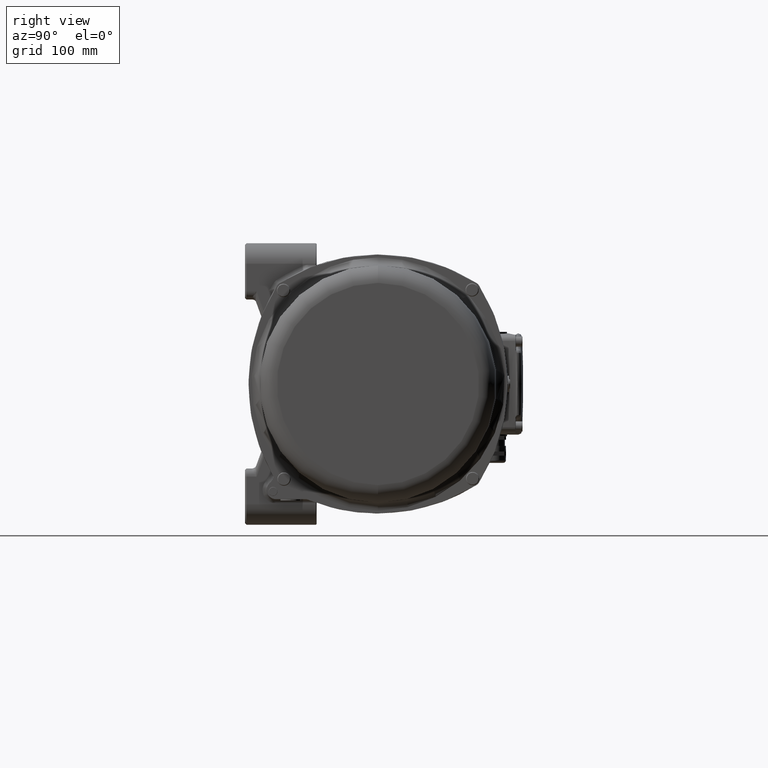
[diagram: clean part render]
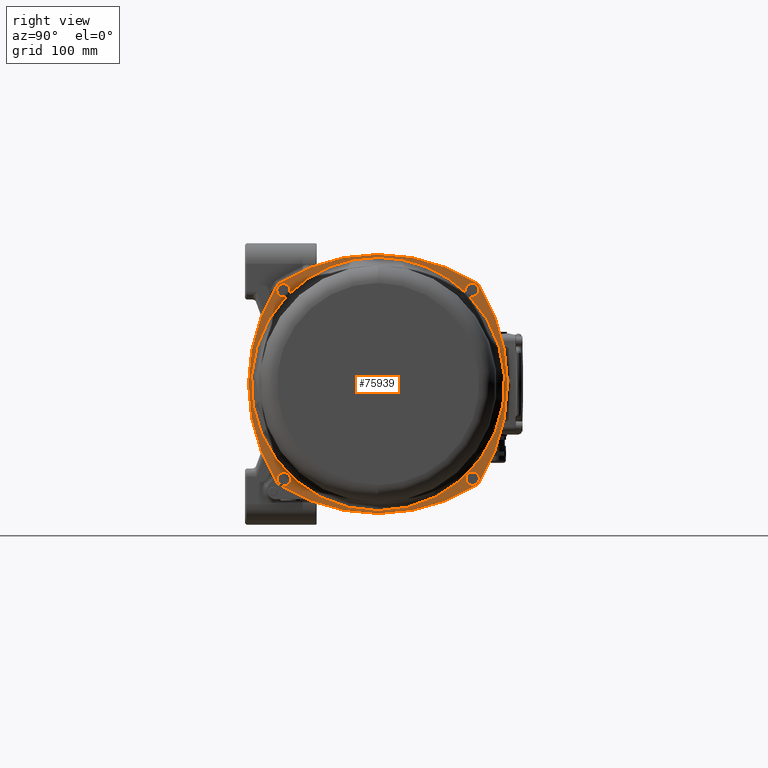
[diagram: same view with one face highlighted and labeled with its STEP entity id]
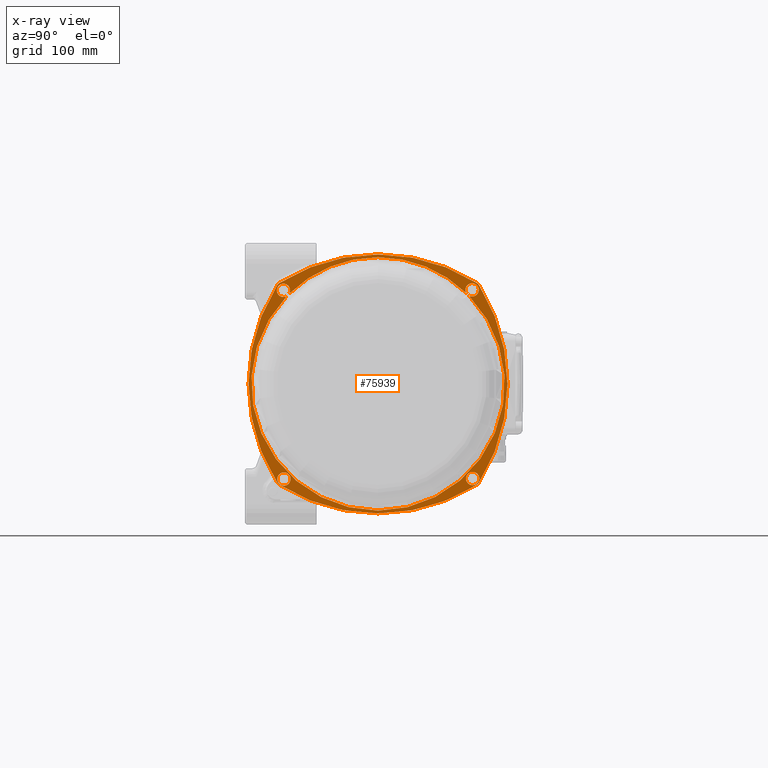
[diagram: x-ray of the same camera — body ghosted, the highlighted face saturated]
A machine part, right view. The second image highlights one B-rep face of the part: STEP entity #75939.
The next image is the same camera in x-ray: the body ghosted, the highlighted face saturated — about 0% of this face is hidden behind the body in this view.
In plain terms, the highlighted planar face has unit normal (1, 0, 0).
Its self-contained STEP definition (entity closure, byte-faithful):
#1106 = VERTEX_POINT ( 'NONE', #87931 ) ;
#1154 = CARTESIAN_POINT ( 'NONE',  ( 132.7000000000000200, -96.19601830899999600, -98.69398696799999000 ) ) ;
#1538 = CARTESIAN_POINT ( 'NONE',  ( 132.7000000000000200, 94.90590212599998700, -98.43134140699999100 ) ) ;
#2230 = ORIENTED_EDGE ( 'NONE', *, *, #7491, .T. ) ;
#2263 = DIRECTION ( 'NONE',  ( 0.0000000000000000000, 0.0000000000000000000, 1.000000000000000000 ) ) ;
#2764 = DIRECTION ( 'NONE',  ( -2.770939329437771500E-015, 0.0000000000000000000, 1.000000000000000000 ) ) ;
#3115 = CIRCLE ( 'NONE', #31936, 6.500000000211988600 ) ;
#3460 = CARTESIAN_POINT ( 'NONE',  ( 132.7000000000000200, -92.42388155449999900, 91.42388155399999100 ) ) ;
#4143 = ORIENTED_EDGE ( 'NONE', *, *, #55345, .F. ) ;
#4537 = CARTESIAN_POINT ( 'NONE',  ( 132.7000000000000200, 85.91642170113279100, 89.44186098267850600 ) ) ;
#4847 = DIRECTION ( 'NONE',  ( -1.000000000000000000, 0.0000000000000000000, 0.0000000000000000000 ) ) ;
#5041 = DIRECTION ( 'NONE',  ( -1.000000000000000000, 0.0000000000000000000, 0.0000000000000000000 ) ) ;
#5532 = CARTESIAN_POINT ( 'NONE',  ( 132.6999999999999600, 92.96730026400005900, 106.4208218309999800 ) ) ;
#5922 = CIRCLE ( 'NONE', #75209, 180.2999999941139900 ) ;
#7232 = CARTESIAN_POINT ( 'NONE',  ( 132.7000000000000200, 89.94186098294400700, -86.41642170102319700 ) ) ;
#7234 = CIRCLE ( 'NONE', #22766, 6.500000000211988600 ) ;
#7438 = CARTESIAN_POINT ( 'NONE',  ( 132.7000000000000200, 97.93134140699999100, 94.40590212599998700 ) ) ;
#7491 = EDGE_CURVE ( 'NONE', #29640, #111981, #7234, .T. ) ;
#8782 = VERTEX_POINT ( 'NONE', #32453 ) ;
#8857 = CARTESIAN_POINT ( 'NONE',  ( 132.7000000000000200, -92.42388155449999900, 91.42388155399999100 ) ) ;
#9506 = CARTESIAN_POINT ( 'NONE',  ( 132.7000000000000200, 94.90590212599998700, -98.43134140699999100 ) ) ;
#10209 =( BOUNDED_CURVE ( )  B_SPLINE_CURVE ( 3, ( #51591, #110024, #49890, #120064 ),
 .UNSPECIFIED., .F., .F. ) 
 B_SPLINE_CURVE_WITH_KNOTS ( ( 4, 4 ),
 ( 3.112530718401936400E-014, 0.02044192930121075500 ),
 .UNSPECIFIED. ) 
 CURVE ( )  GEOMETRIC_REPRESENTATION_ITEM ( )  RATIONAL_B_SPLINE_CURVE ( ( 1.000000000000000000, 0.3333333333333340400, 0.3333333333333340400, 1.000000000000000000 ) ) 
 REPRESENTATION_ITEM ( '' )  );
#10734 = VERTEX_POINT ( 'NONE', #55469 ) ;
#11696 = DIRECTION ( 'NONE',  ( -1.000000000000000000, 0.0000000000000000000, 0.0000000000000000000 ) ) ;
#12083 = ORIENTED_EDGE ( 'NONE', *, *, #33571, .T. ) ;
#12089 = DIRECTION ( 'NONE',  ( -1.000000000000000000, 0.0000000000000000000, 0.0000000000000000000 ) ) ;
#12234 = DIRECTION ( 'NONE',  ( -1.000000000000000000, 0.0000000000000000000, 0.0000000000000000000 ) ) ;
#12329 = DIRECTION ( 'NONE',  ( -1.000000000000000000, 0.0000000000000000000, 0.0000000000000000000 ) ) ;
#14732 = CARTESIAN_POINT ( 'NONE',  ( 132.7000000000000200, -92.42388155449999900, 97.92388155421198800 ) ) ;
#15662 =( BOUNDED_CURVE ( )  B_SPLINE_CURVE ( 3, ( #50961, #80334, #72009, #1538 ),
 .UNSPECIFIED., .F., .F. ) 
 B_SPLINE_CURVE_WITH_KNOTS ( ( 4, 4 ),
 ( 8.770270558779335600E-014, 0.02044192930136089600 ),
 .UNSPECIFIED. ) 
 CURVE ( )  GEOMETRIC_REPRESENTATION_ITEM ( )  RATIONAL_B_SPLINE_CURVE ( ( 1.000000000000000000, 0.3333333333333329800, 0.3333333333333329800, 1.000000000000000000 ) ) 
 REPRESENTATION_ITEM ( '' )  );
#16481 = FACE_BOUND ( 'NONE', #29698, .T. ) ;
#16483 = ORIENTED_EDGE ( 'NONE', *, *, #55524, .T. ) ;
#17915 = EDGE_CURVE ( 'NONE', #126546, #100861, #3115, .T. ) ;
#17928 = CARTESIAN_POINT ( 'NONE',  ( 132.7000000000000500, 97.20862882799998800, 98.05521358499999000 ) ) ;
#18285 = DIRECTION ( 'NONE',  ( -1.000000000000000000, 0.0000000000000000000, 0.0000000000000000000 ) ) ;
#18300 = VERTEX_POINT ( 'NONE', #51112 ) ;
#19063 = AXIS2_PLACEMENT_3D ( 'NONE', #91432, #11696, #122098 ) ;
#19238 = VERTEX_POINT ( 'NONE', #22709 ) ;
#19494 = CARTESIAN_POINT ( 'NONE',  ( 132.7000000000000200, -89.19080612272370000, 85.78497888989950600 ) ) ;
#19568 = EDGE_CURVE ( 'NONE', #71340, #41216, #15662, .T. ) ;
#19681 = CIRCLE ( 'NONE', #23229, 123.7500000000000000 ) ;
#20218 = DIRECTION ( 'NONE',  ( -1.000000000000000000, 0.0000000000000000000, 0.0000000000000000000 ) ) ;
#22195 = CARTESIAN_POINT ( 'NONE',  ( 132.7000000000000200, -94.90590212599998700, 97.43134140699999100 ) ) ;
#22709 = CARTESIAN_POINT ( 'NONE',  ( 132.7000000000000200, 0.0000000000000000000, 123.7500000000000000 ) ) ;
#22766 = AXIS2_PLACEMENT_3D ( 'NONE', #112884, #5041, #55356 ) ;
#23170 = CARTESIAN_POINT ( 'NONE',  ( 132.7000000000000200, 0.0000000000000000000, 53.79999999942369700 ) ) ;
#23229 = AXIS2_PLACEMENT_3D ( 'NONE', #55424, #104632, #94076 ) ;
#23557 = CIRCLE ( 'NONE', #19063, 6.500000000211988600 ) ;
#23824 = ORIENTED_EDGE ( 'NONE', *, *, #58934, .T. ) ;
#25708 = VERTEX_POINT ( 'NONE', #58222 ) ;
#26004 = ORIENTED_EDGE ( 'NONE', *, *, #41003, .F. ) ;
#26302 = CARTESIAN_POINT ( 'NONE',  ( 132.7000000000000200, -97.93134140699999100, -95.40590212599998700 ) ) ;
#26546 = CARTESIAN_POINT ( 'NONE',  ( 132.7000000000000200, -85.91642170111910600, -90.44186098271170200 ) ) ;
#27024 = CARTESIAN_POINT ( 'NONE',  ( 132.7000000000000200, 0.0000000000000000000, 0.0000000000000000000 ) ) ;
#27759 = DIRECTION ( 'NONE',  ( 0.0000000000000000000, 0.0000000000000000000, 1.000000000000000000 ) ) ;
#28516 = EDGE_CURVE ( 'NONE', #37680, #111121, #99002, .T. ) ;
#29413 = ORIENTED_EDGE ( 'NONE', *, *, #73067, .T. ) ;
#29640 = VERTEX_POINT ( 'NONE', #33070 ) ;
#29698 = EDGE_LOOP ( 'NONE', ( #12083, #110410, #16483, #112367, #118063, #54218, #79603, #29413, #73205, #23824, #2230 ) ) ;
#29818 = ORIENTED_EDGE ( 'NONE', *, *, #74341, .T. ) ;
#30004 = CARTESIAN_POINT ( 'NONE',  ( 132.7000000000000200, 98.69398696799999000, -96.19601830899999600 ) ) ;
#31828 = CARTESIAN_POINT ( 'NONE',  ( 132.7000000000000200, -128.0180000000000000, 128.0180000000000000 ) ) ;
#31911 = DIRECTION ( 'NONE',  ( -2.770939329437771500E-015, 0.0000000000000000000, 1.000000000000000000 ) ) ;
#31936 = AXIS2_PLACEMENT_3D ( 'NONE', #114446, #4847, #125349 ) ;
#32346 = EDGE_CURVE ( 'NONE', #98155, #129179, #110992, .T. ) ;
#32453 = CARTESIAN_POINT ( 'NONE',  ( 132.7000000000000200, 96.19601830898261600, -98.69398696801100400 ) ) ;
#33070 = CARTESIAN_POINT ( 'NONE',  ( 132.7000000000000200, 86.26410856221500000, 88.72748206691750300 ) ) ;
#33571 = EDGE_CURVE ( 'NONE', #111981, #53583, #41061, .T. ) ;
#33600 = CARTESIAN_POINT ( 'NONE',  ( 132.6999999999999300, -80.95238055900009000, -102.4567806879999900 ) ) ;
#34934 = DIRECTION ( 'NONE',  ( -1.000000000000000000, 0.0000000000000000000, 0.0000000000000000000 ) ) ;
#37680 = VERTEX_POINT ( 'NONE', #38918 ) ;
#38918 = CARTESIAN_POINT ( 'NONE',  ( 132.7000000000000200, 98.69398696801120300, 96.19601830898230300 ) ) ;
#39505 = AXIS2_PLACEMENT_3D ( 'NONE', #27024, #18285, #67722 ) ;
#39805 = CIRCLE ( 'NONE', #86842, 6.500000000211988600 ) ;
#40619 = PLANE ( 'NONE',  #101809 ) ;
#40917 = EDGE_CURVE ( 'NONE', #10734, #72405, #10209, .T. ) ;
#40959 = EDGE_CURVE ( 'NONE', #72405, #93091, #41952, .T. ) ;
#41003 = EDGE_CURVE ( 'NONE', #129179, #1106, #5922, .T. ) ;
#41061 =( BOUNDED_CURVE ( )  B_SPLINE_CURVE ( 3, ( #74274, #84375, #5532, #44957 ),
 .UNSPECIFIED., .F., .F. ) 
 B_SPLINE_CURVE_WITH_KNOTS ( ( 4, 4 ),
 ( 0.0000000000000000000, 0.02044192930147613300 ),
 .UNSPECIFIED. ) 
 CURVE ( )  GEOMETRIC_REPRESENTATION_ITEM ( )  RATIONAL_B_SPLINE_CURVE ( ( 1.000000000000000000, 0.3333333333333319800, 0.3333333333333319800, 1.000000000000000000 ) ) 
 REPRESENTATION_ITEM ( '' )  );
#41216 = VERTEX_POINT ( 'NONE', #9506 ) ;
#41858 = ORIENTED_EDGE ( 'NONE', *, *, #17915, .T. ) ;
#41952 = CIRCLE ( 'NONE', #59242, 6.500000000211988600 ) ;
#42326 = EDGE_CURVE ( 'NONE', #114057, #56937, #90377, .T. ) ;
#42424 = DIRECTION ( 'NONE',  ( 0.0000000000000000000, 0.0000000000000000000, 1.000000000000000000 ) ) ;
#42591 = CARTESIAN_POINT ( 'NONE',  ( 132.7000000000000200, -6.938893903907019300E-015, -53.79999999376919800 ) ) ;
#42672 = AXIS2_PLACEMENT_3D ( 'NONE', #86031, #65844, #57087 ) ;
#42820 = ORIENTED_EDGE ( 'NONE', *, *, #121472, .F. ) ;
#43289 = DIRECTION ( 'NONE',  ( -1.000000000000000000, 0.0000000000000000000, 0.0000000000000000000 ) ) ;
#44957 = CARTESIAN_POINT ( 'NONE',  ( 132.7000000000000200, 97.93134140699999100, 94.40590212599998700 ) ) ;
#45198 = CARTESIAN_POINT ( 'NONE',  ( 132.7000000000000200, 1.515500413944849700E-014, -123.7500000000000000 ) ) ;
#45808 = DIRECTION ( 'NONE',  ( 0.0000000000000000000, 0.0000000000000000000, 1.000000000000000000 ) ) ;
#46899 = DIRECTION ( 'NONE',  ( -1.000000000000000000, 0.0000000000000000000, 0.0000000000000000000 ) ) ;
#47321 = DIRECTION ( 'NONE',  ( 0.0000000000000000000, 0.0000000000000000000, 1.000000000000000000 ) ) ;
#49011 = VERTEX_POINT ( 'NONE', #45198 ) ;
#49424 = EDGE_CURVE ( 'NONE', #8782, #18300, #56796, .T. ) ;
#49890 = CARTESIAN_POINT ( 'NONE',  ( 132.6999999999998200, -106.9208218310000400, 92.46730026400001600 ) ) ;
#50961 = CARTESIAN_POINT ( 'NONE',  ( 132.7000000000000200, 89.94186098294400700, -86.41642170102319700 ) ) ;
#51112 = CARTESIAN_POINT ( 'NONE',  ( 132.7000000000000200, -96.19601830899999600, -98.69398696799999000 ) ) ;
#51591 = CARTESIAN_POINT ( 'NONE',  ( 132.7000000000000200, -89.94186098297100800, 85.41642170101198400 ) ) ;
#52244 = EDGE_CURVE ( 'NONE', #1106, #37680, #109001, .T. ) ;
#53411 = CARTESIAN_POINT ( 'NONE',  ( 132.7000000000000200, 0.0000000000000000000, 0.0000000000000000000 ) ) ;
#53583 = VERTEX_POINT ( 'NONE', #7438 ) ;
#54218 = ORIENTED_EDGE ( 'NONE', *, *, #40917, .T. ) ;
#55345 = EDGE_CURVE ( 'NONE', #56937, #98155, #111353, .T. ) ;
#55356 = DIRECTION ( 'NONE',  ( 0.0000000000000000000, 0.0000000000000000000, 1.000000000000000000 ) ) ;
#55387 = CARTESIAN_POINT ( 'NONE',  ( 132.7000000000000200, -53.79999999942380400, 6.938893903907230000E-015 ) ) ;
#55424 = CARTESIAN_POINT ( 'NONE',  ( 132.7000000000000200, 0.0000000000000000000, 0.0000000000000000000 ) ) ;
#55469 = CARTESIAN_POINT ( 'NONE',  ( 132.7000000000000200, -89.94186098297100800, 85.41642170101198400 ) ) ;
#55524 = EDGE_CURVE ( 'NONE', #25708, #49011, #96354, .T. ) ;
#56646 = CARTESIAN_POINT ( 'NONE',  ( 132.7000000000000200, -91.92388155399999100, -92.92388155449999900 ) ) ;
#56796 = CIRCLE ( 'NONE', #82675, 180.2999999992410100 ) ;
#56937 = VERTEX_POINT ( 'NONE', #72892 ) ;
#57087 = DIRECTION ( 'NONE',  ( 0.0000000000000000000, 0.0000000000000000000, 1.000000000000000000 ) ) ;
#58222 = CARTESIAN_POINT ( 'NONE',  ( 132.7000000000000200, 88.72748206689649900, 86.26410856244460500 ) ) ;
#58934 = EDGE_CURVE ( 'NONE', #19238, #29640, #95993, .T. ) ;
#59110 = VERTEX_POINT ( 'NONE', #26302 ) ;
#59242 = AXIS2_PLACEMENT_3D ( 'NONE', #3460, #12234, #42424 ) ;
#60185 = AXIS2_PLACEMENT_3D ( 'NONE', #72184, #43289, #113443 ) ;
#61076 = EDGE_CURVE ( 'NONE', #97780, #10734, #23557, .T. ) ;
#62285 = CIRCLE ( 'NONE', #127540, 6.500000000211988600 ) ;
#63491 = EDGE_LOOP ( 'NONE', ( #102967, #29818 ) ) ;
#64242 = CARTESIAN_POINT ( 'NONE',  ( 132.7000000000000700, -98.05521358499999000, 97.20862882800000200 ) ) ;
#64689 = DIRECTION ( 'NONE',  ( 0.0000000000000000000, 0.0000000000000000000, 1.000000000000000000 ) ) ;
#65844 = DIRECTION ( 'NONE',  ( -1.000000000000000000, 0.0000000000000000000, 0.0000000000000000000 ) ) ;
#67166 = DIRECTION ( 'NONE',  ( -1.000000000000000000, 0.0000000000000000000, 0.0000000000000000000 ) ) ;
#67722 = DIRECTION ( 'NONE',  ( 0.0000000000000000000, 0.0000000000000000000, 1.000000000000000000 ) ) ;
#70140 = EDGE_CURVE ( 'NONE', #59110, #126546, #70446, .T. ) ;
#70382 = ORIENTED_EDGE ( 'NONE', *, *, #52244, .F. ) ;
#70446 = CIRCLE ( 'NONE', #129767, 6.500000000211988600 ) ;
#71162 = CARTESIAN_POINT ( 'NONE',  ( 132.7000000000000500, -98.05521358500000400, -97.20862882799998800 ) ) ;
#71340 = VERTEX_POINT ( 'NONE', #7232 ) ;
#71369 = CARTESIAN_POINT ( 'NONE',  ( 132.6999999999995100, -7.424743444581149800E-015, 126.5000000003448100 ) ) ;
#72009 = CARTESIAN_POINT ( 'NONE',  ( 132.6999999999999000, 106.9208218310000400, -93.46730026400004500 ) ) ;
#72154 = CARTESIAN_POINT ( 'NONE',  ( 132.7000000000000200, -85.91642170111910600, -90.44186098271170200 ) ) ;
#72184 = CARTESIAN_POINT ( 'NONE',  ( 132.7000000000000200, 53.79999999942369700, 0.0000000000000000000 ) ) ;
#72405 = VERTEX_POINT ( 'NONE', #22195 ) ;
#72443 = ORIENTED_EDGE ( 'NONE', *, *, #32346, .F. ) ;
#72636 = CARTESIAN_POINT ( 'NONE',  ( 132.7000000000000200, -6.938893903907019300E-015, -53.79999999376919800 ) ) ;
#72892 = CARTESIAN_POINT ( 'NONE',  ( 132.7000000000000200, -98.69398696799999000, 96.19601830899999600 ) ) ;
#73067 = EDGE_CURVE ( 'NONE', #93091, #78105, #62285, .T. ) ;
#73205 = ORIENTED_EDGE ( 'NONE', *, *, #125667, .T. ) ;
#74274 = CARTESIAN_POINT ( 'NONE',  ( 132.7000000000000200, 85.91642170113279100, 89.44186098267850600 ) ) ;
#74331 = CARTESIAN_POINT ( 'NONE',  ( 132.7000000000000200, -96.19601830900190000, 98.69398696799879600 ) ) ;
#74341 = EDGE_CURVE ( 'NONE', #41216, #71340, #106009, .T. ) ;
#75209 = AXIS2_PLACEMENT_3D ( 'NONE', #72636, #92829, #31911 ) ;
#75939 = ADVANCED_FACE ( 'NONE', ( #16481, #105889, #119913, #79111 ), #40619, .T. ) ;
#76014 = DIRECTION ( 'NONE',  ( -1.000000000000000000, 0.0000000000000000000, 0.0000000000000000000 ) ) ;
#77867 = CARTESIAN_POINT ( 'NONE',  ( 132.7000000000000200, 96.19601830890810800, 98.69398696785431500 ) ) ;
#78105 = VERTEX_POINT ( 'NONE', #103525 ) ;
#79111 = FACE_OUTER_BOUND ( 'NONE', #94106, .T. ) ;
#79320 = ORIENTED_EDGE ( 'NONE', *, *, #49424, .F. ) ;
#79603 = ORIENTED_EDGE ( 'NONE', *, *, #40959, .T. ) ;
#80334 = CARTESIAN_POINT ( 'NONE',  ( 132.6999999999999000, 101.9567806880000700, -81.45238055900003400 ) ) ;
#81030 = ORIENTED_EDGE ( 'NONE', *, *, #117337, .T. ) ;
#81310 = DIRECTION ( 'NONE',  ( 0.0000000000000000000, 0.0000000000000000000, -1.000000000000000000 ) ) ;
#82042 = EDGE_CURVE ( 'NONE', #49011, #97780, #86092, .T. ) ;
#82211 = CARTESIAN_POINT ( 'NONE',  ( 132.7000000000000200, -97.93134140699999100, -95.40590212599998700 ) ) ;
#82675 = AXIS2_PLACEMENT_3D ( 'NONE', #23170, #34934, #64689 ) ;
#82720 =( BOUNDED_CURVE ( )  B_SPLINE_CURVE ( 3, ( #1154, #112421, #71162, #101491 ),
 .UNSPECIFIED., .F., .F. ) 
 B_SPLINE_CURVE_WITH_KNOTS ( ( 4, 4 ),
 ( 4.410704621506763700E-014, 0.003558460463356817600 ),
 .UNSPECIFIED. ) 
 CURVE ( )  GEOMETRIC_REPRESENTATION_ITEM ( )  RATIONAL_B_SPLINE_CURVE ( ( 1.000000000000000000, 0.9835473808279279200, 0.9835473808279279200, 1.000000000000000000 ) ) 
 REPRESENTATION_ITEM ( '' )  );
#82990 = DIRECTION ( 'NONE',  ( 0.0000000000000000000, 0.0000000000000000000, 1.000000000000000000 ) ) ;
#83304 = DIRECTION ( 'NONE',  ( -1.000000000000000000, -8.097492344567750300E-016, -2.801359982512400300E-015 ) ) ;
#83709 = ORIENTED_EDGE ( 'NONE', *, *, #116233, .F. ) ;
#84375 = CARTESIAN_POINT ( 'NONE',  ( 132.6999999999999600, 80.95238055900003400, 101.4567806879999400 ) ) ;
#85165 = CARTESIAN_POINT ( 'NONE',  ( 132.7000000000000200, -96.19601830900190000, 98.69398696799879600 ) ) ;
#86031 = CARTESIAN_POINT ( 'NONE',  ( 132.7000000000000200, 0.0000000000000000000, 0.0000000000000000000 ) ) ;
#86092 = CIRCLE ( 'NONE', #42672, 123.7500000000000000 ) ;
#86842 = AXIS2_PLACEMENT_3D ( 'NONE', #113310, #12089, #82990 ) ;
#87931 = CARTESIAN_POINT ( 'NONE',  ( 132.7000000000000200, 96.19601830890810800, 98.69398696785431500 ) ) ;
#88859 = CARTESIAN_POINT ( 'NONE',  ( 132.7000000000000500, 98.05521358499999000, 97.20862882799998800 ) ) ;
#90302 = DIRECTION ( 'NONE',  ( 0.0000000000000000000, 0.0000000000000000000, 1.000000000000000000 ) ) ;
#90377 = CIRCLE ( 'NONE', #60185, 180.2999999992410100 ) ;
#91432 = CARTESIAN_POINT ( 'NONE',  ( 132.7000000000000200, -92.42388155449999900, 91.42388155399999100 ) ) ;
#91774 = ORIENTED_EDGE ( 'NONE', *, *, #28516, .F. ) ;
#92786 = CARTESIAN_POINT ( 'NONE',  ( 132.7000000000000700, -97.20862882800000200, 98.05521358499999000 ) ) ;
#92829 = DIRECTION ( 'NONE',  ( -1.000000000000000000, -8.097492344567750300E-016, -2.801359982512400300E-015 ) ) ;
#93091 = VERTEX_POINT ( 'NONE', #14732 ) ;
#93152 =( BOUNDED_CURVE ( )  B_SPLINE_CURVE ( 3, ( #72154, #33600, #123872, #82211 ),
 .UNSPECIFIED., .F., .F. ) 
 B_SPLINE_CURVE_WITH_KNOTS ( ( 4, 4 ),
 ( 0.0000000000000000000, 0.02044192930136090300 ),
 .UNSPECIFIED. ) 
 CURVE ( )  GEOMETRIC_REPRESENTATION_ITEM ( )  RATIONAL_B_SPLINE_CURVE ( ( 1.000000000000000000, 0.3333333333333329800, 0.3333333333333329800, 1.000000000000000000 ) ) 
 REPRESENTATION_ITEM ( '' )  );
#94076 = DIRECTION ( 'NONE',  ( 0.0000000000000000000, 0.0000000000000000000, 1.000000000000000000 ) ) ;
#94106 = EDGE_LOOP ( 'NONE', ( #72443, #4143, #95215, #83709, #79320, #42820, #91774, #70382, #26004 ) ) ;
#95215 = ORIENTED_EDGE ( 'NONE', *, *, #42326, .F. ) ;
#95993 = CIRCLE ( 'NONE', #97689, 123.7500000000000000 ) ;
#96354 = CIRCLE ( 'NONE', #39505, 123.7500000000000000 ) ;
#97435 = AXIS2_PLACEMENT_3D ( 'NONE', #55387, #76014, #45808 ) ;
#97689 = AXIS2_PLACEMENT_3D ( 'NONE', #53411, #12329, #2263 ) ;
#97780 = VERTEX_POINT ( 'NONE', #19494 ) ;
#97849 = EDGE_CURVE ( 'NONE', #53583, #25708, #39805, .T. ) ;
#98155 = VERTEX_POINT ( 'NONE', #85165 ) ;
#99002 = CIRCLE ( 'NONE', #97435, 180.2999999992410100 ) ;
#100578 = CARTESIAN_POINT ( 'NONE',  ( 132.7000000000001000, 98.05521358499999000, -97.20862882799998800 ) ) ;
#100861 = VERTEX_POINT ( 'NONE', #26546 ) ;
#101008 = CARTESIAN_POINT ( 'NONE',  ( 132.7000000000001000, 97.20862882799998800, -98.05521358499999000 ) ) ;
#101491 = CARTESIAN_POINT ( 'NONE',  ( 132.7000000000000200, -98.69398696799110800, -96.19601830901410700 ) ) ;
#101809 = AXIS2_PLACEMENT_3D ( 'NONE', #31828, #122524, #81310 ) ;
#102967 = ORIENTED_EDGE ( 'NONE', *, *, #19568, .T. ) ;
#103525 = CARTESIAN_POINT ( 'NONE',  ( 132.7000000000000200, -86.75014235983539400, 88.25233878214859800 ) ) ;
#104350 = ORIENTED_EDGE ( 'NONE', *, *, #70140, .T. ) ;
#104632 = DIRECTION ( 'NONE',  ( -1.000000000000000000, 0.0000000000000000000, 0.0000000000000000000 ) ) ;
#105889 = FACE_BOUND ( 'NONE', #63491, .T. ) ;
#106009 = CIRCLE ( 'NONE', #114322, 6.500000000211988600 ) ;
#109001 =( BOUNDED_CURVE ( )  B_SPLINE_CURVE ( 3, ( #77867, #17928, #88859, #117387 ),
 .UNSPECIFIED., .F., .F. ) 
 B_SPLINE_CURVE_WITH_KNOTS ( ( 4, 4 ),
 ( 1.688285790423249600E-013, 0.003558460463507122700 ),
 .UNSPECIFIED. ) 
 CURVE ( )  GEOMETRIC_REPRESENTATION_ITEM ( )  RATIONAL_B_SPLINE_CURVE ( ( 1.000000000000000000, 0.9835473808279279200, 0.9835473808279279200, 1.000000000000000000 ) ) 
 REPRESENTATION_ITEM ( '' )  );
#110024 = CARTESIAN_POINT ( 'NONE',  ( 132.6999999999998200, -101.9567806880000100, 80.45238055900003400 ) ) ;
#110410 = ORIENTED_EDGE ( 'NONE', *, *, #97849, .T. ) ;
#110992 = CIRCLE ( 'NONE', #122953, 180.2999999941139900 ) ;
#111121 = VERTEX_POINT ( 'NONE', #128480 ) ;
#111353 =( BOUNDED_CURVE ( )  B_SPLINE_CURVE ( 3, ( #114303, #64242, #92786, #74331 ),
 .UNSPECIFIED., .F., .F. ) 
 B_SPLINE_CURVE_WITH_KNOTS ( ( 4, 4 ),
 ( 4.374069356425923600E-014, 0.003558460463371001100 ),
 .UNSPECIFIED. ) 
 CURVE ( )  GEOMETRIC_REPRESENTATION_ITEM ( )  RATIONAL_B_SPLINE_CURVE ( ( 1.000000000000000000, 0.9835473808279280300, 0.9835473808279280300, 1.000000000000000000 ) ) 
 REPRESENTATION_ITEM ( '' )  );
#111648 = EDGE_LOOP ( 'NONE', ( #81030, #104350, #41858 ) ) ;
#111981 = VERTEX_POINT ( 'NONE', #4537 ) ;
#112367 = ORIENTED_EDGE ( 'NONE', *, *, #82042, .T. ) ;
#112421 = CARTESIAN_POINT ( 'NONE',  ( 132.7000000000000500, -97.20862882799998800, -98.05521358500000400 ) ) ;
#112884 = CARTESIAN_POINT ( 'NONE',  ( 132.7000000000000200, 91.92388155399999100, 91.92388155449999900 ) ) ;
#113310 = CARTESIAN_POINT ( 'NONE',  ( 132.7000000000000200, 91.92388155399999100, 91.92388155449999900 ) ) ;
#113443 = DIRECTION ( 'NONE',  ( 0.0000000000000000000, 0.0000000000000000000, 1.000000000000000000 ) ) ;
#114057 = VERTEX_POINT ( 'NONE', #129726 ) ;
#114303 = CARTESIAN_POINT ( 'NONE',  ( 132.7000000000000200, -98.69398696799999000, 96.19601830899999600 ) ) ;
#114322 = AXIS2_PLACEMENT_3D ( 'NONE', #127546, #46899, #47321 ) ;
#114446 = CARTESIAN_POINT ( 'NONE',  ( 132.7000000000000200, -91.92388155399999100, -92.92388155449999900 ) ) ;
#116233 = EDGE_CURVE ( 'NONE', #18300, #114057, #82720, .T. ) ;
#117337 = EDGE_CURVE ( 'NONE', #100861, #59110, #93152, .T. ) ;
#117387 = CARTESIAN_POINT ( 'NONE',  ( 132.7000000000000200, 98.69398696801120300, 96.19601830898230300 ) ) ;
#118063 = ORIENTED_EDGE ( 'NONE', *, *, #61076, .T. ) ;
#119601 =( BOUNDED_CURVE ( )  B_SPLINE_CURVE ( 3, ( #30004, #100578, #101008, #120304 ),
 .UNSPECIFIED., .F., .F. ) 
 B_SPLINE_CURVE_WITH_KNOTS ( ( 4, 4 ),
 ( 1.560108512814695700E-013, 0.003558460463506917100 ),
 .UNSPECIFIED. ) 
 CURVE ( )  GEOMETRIC_REPRESENTATION_ITEM ( )  RATIONAL_B_SPLINE_CURVE ( ( 1.000000000000000000, 0.9835473808279280300, 0.9835473808279280300, 1.000000000000000000 ) ) 
 REPRESENTATION_ITEM ( '' )  );
#119913 = FACE_BOUND ( 'NONE', #111648, .T. ) ;
#120064 = CARTESIAN_POINT ( 'NONE',  ( 132.7000000000000200, -94.90590212599998700, 97.43134140699999100 ) ) ;
#120304 = CARTESIAN_POINT ( 'NONE',  ( 132.7000000000000200, 96.19601830898261600, -98.69398696801100400 ) ) ;
#121472 = EDGE_CURVE ( 'NONE', #111121, #8782, #119601, .T. ) ;
#122059 = CARTESIAN_POINT ( 'NONE',  ( 132.7000000000000200, -91.92388155399999100, -86.42388155428801600 ) ) ;
#122098 = DIRECTION ( 'NONE',  ( 0.0000000000000000000, 0.0000000000000000000, 1.000000000000000000 ) ) ;
#122524 = DIRECTION ( 'NONE',  ( 1.000000000000000000, 0.0000000000000000000, 0.0000000000000000000 ) ) ;
#122953 = AXIS2_PLACEMENT_3D ( 'NONE', #42591, #83304, #2764 ) ;
#123872 = CARTESIAN_POINT ( 'NONE',  ( 132.6999999999999300, -92.96730026400008700, -107.4208218310000100 ) ) ;
#125349 = DIRECTION ( 'NONE',  ( 0.0000000000000000000, 0.0000000000000000000, 1.000000000000000000 ) ) ;
#125667 = EDGE_CURVE ( 'NONE', #78105, #19238, #19681, .T. ) ;
#126546 = VERTEX_POINT ( 'NONE', #122059 ) ;
#127540 = AXIS2_PLACEMENT_3D ( 'NONE', #8857, #20218, #90302 ) ;
#127546 = CARTESIAN_POINT ( 'NONE',  ( 132.7000000000000200, 92.42388155449999900, -92.42388155400000500 ) ) ;
#128480 = CARTESIAN_POINT ( 'NONE',  ( 132.7000000000000200, 98.69398696799999000, -96.19601830899999600 ) ) ;
#129179 = VERTEX_POINT ( 'NONE', #71369 ) ;
#129726 = CARTESIAN_POINT ( 'NONE',  ( 132.7000000000000200, -98.69398696799110800, -96.19601830901410700 ) ) ;
#129767 = AXIS2_PLACEMENT_3D ( 'NONE', #56646, #67166, #27759 ) ;